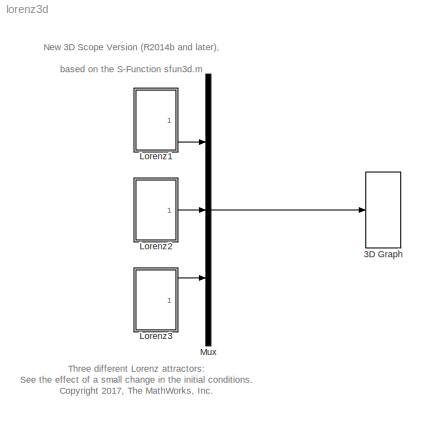
MODEL lorenz3d
KIND model
BLOCK [S-Function] 3D Graph
  CopyFcn = if exist('sfun3d','file'), sfun3d([],[],[],'CopyBlock'); end
  DeleteFcn = if exist('sfun3d','file'), sfun3d([],[],[],'DeleteBlock'); end
  EnableBusSupport = off
  FunctionName = sfun3d
  LoadFcn = if exist('sfun3d','file'), sfun3d([],[],[],'LoadBlock'); end
  NameChangeFcn = if exist('sfun3d','file'), sfun3d([],[],[],'NameChange'); end
  Parameters = ax,T,np,cp,gd,ls,mk
  Ports = [1]
  SFcnIsStateOwnerBlock = off
  SFunctionDeploymentMode = off
  SID = 52
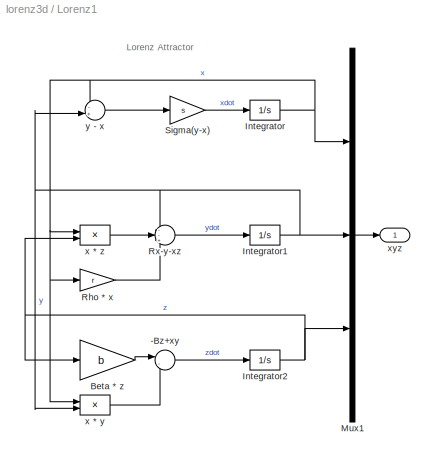
BLOCK [SubSystem] Lorenz1
  Ports = [0, 1]
  RequestExecContextInheritance = off
  SID = 1
BLOCK [Sum] Lorenz1/-Bz+xy
  IconShape = round
  Inputs = |-+
  Ports = [2, 1]
  SID = 2
BLOCK [Gain] Lorenz1/Beta * z
  Gain = b
  SID = 3
BLOCK [Integrator] Lorenz1/Integrator
  InitialCondition = xyz0(1)
  Ports = [1, 1]
  SID = 4
BLOCK [Integrator] Lorenz1/Integrator1
  InitialCondition = xyz0(2)
  Ports = [1, 1]
  SID = 5
BLOCK [Integrator] Lorenz1/Integrator2
  InitialCondition = xyz0(3)
  Ports = [1, 1]
  SID = 6
BLOCK [Mux] Lorenz1/Mux1
  DisplayOption = bar
  Inputs = 3
  Ports = [3, 1]
  SID = 7
BLOCK [Gain] Lorenz1/Rho * x
  Gain = r
  SID = 8
BLOCK [Sum] Lorenz1/Rx-y-xz
  IconShape = round
  Inputs = --+
  Ports = [3, 1]
  SID = 9
BLOCK [Gain] Lorenz1/Sigma(y-x)
  Gain = s
  SID = 10
BLOCK [Product] Lorenz1/x * y
  Ports = [2, 1]
  SID = 11
BLOCK [Product] Lorenz1/x * z
  Ports = [2, 1]
  SID = 12
BLOCK [Outport] Lorenz1/xyz
  IconDisplay = Port number
  SID = 14
BLOCK [Sum] Lorenz1/y - x
  IconShape = round
  Inputs = -+|
  Ports = [2, 1]
  SID = 13
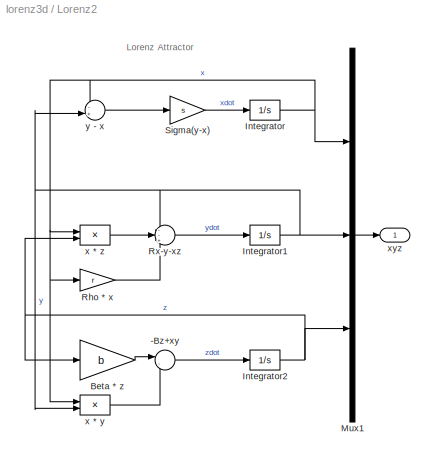
BLOCK [SubSystem] Lorenz2
  Ports = [0, 1]
  RequestExecContextInheritance = off
  SID = 16
BLOCK [Sum] Lorenz2/-Bz+xy
  IconShape = round
  Inputs = |-+
  Ports = [2, 1]
  SID = 17
BLOCK [Gain] Lorenz2/Beta * z
  Gain = b
  SID = 18
BLOCK [Integrator] Lorenz2/Integrator
  InitialCondition = xyz0(1)
  Ports = [1, 1]
  SID = 19
BLOCK [Integrator] Lorenz2/Integrator1
  InitialCondition = xyz0(2)
  Ports = [1, 1]
  SID = 20
BLOCK [Integrator] Lorenz2/Integrator2
  InitialCondition = xyz0(3)
  Ports = [1, 1]
  SID = 21
BLOCK [Mux] Lorenz2/Mux1
  DisplayOption = bar
  Inputs = 3
  Ports = [3, 1]
  SID = 22
BLOCK [Gain] Lorenz2/Rho * x
  Gain = r
  SID = 23
BLOCK [Sum] Lorenz2/Rx-y-xz
  IconShape = round
  Inputs = --+
  Ports = [3, 1]
  SID = 24
BLOCK [Gain] Lorenz2/Sigma(y-x)
  Gain = s
  SID = 25
BLOCK [Product] Lorenz2/x * y
  Ports = [2, 1]
  SID = 26
BLOCK [Product] Lorenz2/x * z
  Ports = [2, 1]
  SID = 27
BLOCK [Outport] Lorenz2/xyz
  IconDisplay = Port number
  SID = 29
BLOCK [Sum] Lorenz2/y - x
  IconShape = round
  Inputs = -+|
  Ports = [2, 1]
  SID = 28
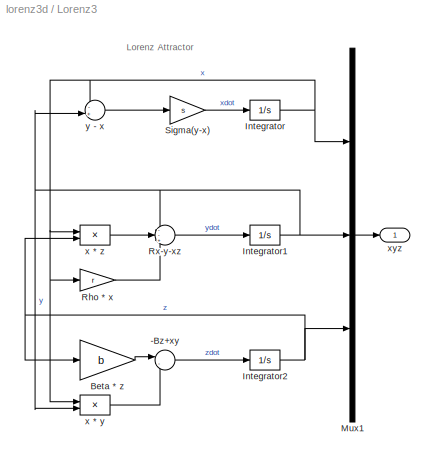
BLOCK [SubSystem] Lorenz3
  Ports = [0, 1]
  RequestExecContextInheritance = off
  SID = 31
BLOCK [Sum] Lorenz3/-Bz+xy
  IconShape = round
  Inputs = |-+
  Ports = [2, 1]
  SID = 32
BLOCK [Gain] Lorenz3/Beta * z
  Gain = b
  SID = 33
BLOCK [Integrator] Lorenz3/Integrator
  InitialCondition = xyz0(1)
  Ports = [1, 1]
  SID = 34
BLOCK [Integrator] Lorenz3/Integrator1
  InitialCondition = xyz0(2)
  Ports = [1, 1]
  SID = 35
BLOCK [Integrator] Lorenz3/Integrator2
  InitialCondition = xyz0(3)
  Ports = [1, 1]
  SID = 36
BLOCK [Mux] Lorenz3/Mux1
  DisplayOption = bar
  Inputs = 3
  Ports = [3, 1]
  SID = 37
BLOCK [Gain] Lorenz3/Rho * x
  Gain = r
  SID = 38
BLOCK [Sum] Lorenz3/Rx-y-xz
  IconShape = round
  Inputs = --+
  Ports = [3, 1]
  SID = 39
BLOCK [Gain] Lorenz3/Sigma(y-x)
  Gain = s
  SID = 40
BLOCK [Product] Lorenz3/x * y
  Ports = [2, 1]
  SID = 41
BLOCK [Product] Lorenz3/x * z
  Ports = [2, 1]
  SID = 42
BLOCK [Outport] Lorenz3/xyz
  IconDisplay = Port number
  SID = 44
BLOCK [Sum] Lorenz3/y - x
  IconShape = round
  Inputs = -+|
  Ports = [2, 1]
  SID = 43
BLOCK [Mux] Mux
  DisplayOption = bar
  Inputs = [3 3 3]
  Ports = [3, 1]
  SID = 46
ANNOTATION (root): \n \n New 3D Scope Version (R2014b and later), \n based on the S-Function sfun3d.m
ANNOTATION (root): Three different Lorenz attractors: \nSee the effect of a small change in the initial conditions.\nCopyright 2017, The MathWorks, Inc.
ANNOTATION Lorenz1: Lorenz Attractor
ANNOTATION Lorenz2: Lorenz Attractor
ANNOTATION Lorenz3: Lorenz Attractor
LINE Lorenz1/-Bz+xy:1 -> Lorenz1/Integrator2:1
LINE Lorenz1/Beta * z:1 -> Lorenz1/-Bz+xy:1
NET Lorenz1/Integrator1:1 -> Lorenz1/Mux1:2, Lorenz1/Rx-y-xz:1, Lorenz1/x * y:2, Lorenz1/y - x:2
NET Lorenz1/Integrator2:1 -> Lorenz1/Beta * z:1, Lorenz1/Mux1:3, Lorenz1/x * z:2
NET Lorenz1/Integrator:1 -> Lorenz1/Mux1:1, Lorenz1/Rho * x:1, Lorenz1/x * y:1, Lorenz1/x * z:1, Lorenz1/y - x:1
LINE Lorenz1/Mux1:1 -> Lorenz1/xyz:1
LINE Lorenz1/Rho * x:1 -> Lorenz1/Rx-y-xz:3
LINE Lorenz1/Rx-y-xz:1 -> Lorenz1/Integrator1:1
LINE Lorenz1/Sigma(y-x):1 -> Lorenz1/Integrator:1
LINE Lorenz1/x * y:1 -> Lorenz1/-Bz+xy:2
LINE Lorenz1/x * z:1 -> Lorenz1/Rx-y-xz:2
LINE Lorenz1/y - x:1 -> Lorenz1/Sigma(y-x):1
LINE Lorenz1:1 -> Mux:1
LINE Lorenz2/-Bz+xy:1 -> Lorenz2/Integrator2:1
LINE Lorenz2/Beta * z:1 -> Lorenz2/-Bz+xy:1
NET Lorenz2/Integrator1:1 -> Lorenz2/Mux1:2, Lorenz2/Rx-y-xz:1, Lorenz2/x * y:2, Lorenz2/y - x:2
NET Lorenz2/Integrator2:1 -> Lorenz2/Beta * z:1, Lorenz2/Mux1:3, Lorenz2/x * z:2
NET Lorenz2/Integrator:1 -> Lorenz2/Mux1:1, Lorenz2/Rho * x:1, Lorenz2/x * y:1, Lorenz2/x * z:1, Lorenz2/y - x:1
LINE Lorenz2/Mux1:1 -> Lorenz2/xyz:1
LINE Lorenz2/Rho * x:1 -> Lorenz2/Rx-y-xz:3
LINE Lorenz2/Rx-y-xz:1 -> Lorenz2/Integrator1:1
LINE Lorenz2/Sigma(y-x):1 -> Lorenz2/Integrator:1
LINE Lorenz2/x * y:1 -> Lorenz2/-Bz+xy:2
LINE Lorenz2/x * z:1 -> Lorenz2/Rx-y-xz:2
LINE Lorenz2/y - x:1 -> Lorenz2/Sigma(y-x):1
LINE Lorenz2:1 -> Mux:2
LINE Lorenz3/-Bz+xy:1 -> Lorenz3/Integrator2:1
LINE Lorenz3/Beta * z:1 -> Lorenz3/-Bz+xy:1
NET Lorenz3/Integrator1:1 -> Lorenz3/Mux1:2, Lorenz3/Rx-y-xz:1, Lorenz3/x * y:2, Lorenz3/y - x:2
NET Lorenz3/Integrator2:1 -> Lorenz3/Beta * z:1, Lorenz3/Mux1:3, Lorenz3/x * z:2
NET Lorenz3/Integrator:1 -> Lorenz3/Mux1:1, Lorenz3/Rho * x:1, Lorenz3/x * y:1, Lorenz3/x * z:1, Lorenz3/y - x:1
LINE Lorenz3/Mux1:1 -> Lorenz3/xyz:1
LINE Lorenz3/Rho * x:1 -> Lorenz3/Rx-y-xz:3
LINE Lorenz3/Rx-y-xz:1 -> Lorenz3/Integrator1:1
LINE Lorenz3/Sigma(y-x):1 -> Lorenz3/Integrator:1
LINE Lorenz3/x * y:1 -> Lorenz3/-Bz+xy:2
LINE Lorenz3/x * z:1 -> Lorenz3/Rx-y-xz:2
LINE Lorenz3/y - x:1 -> Lorenz3/Sigma(y-x):1
LINE Lorenz3:1 -> Mux:3
LINE Mux:1 -> 3D Graph:1
note: NET lines group one-source signal fan-out (src -> all destinations, sorted); 1:1 wires keep LINE
